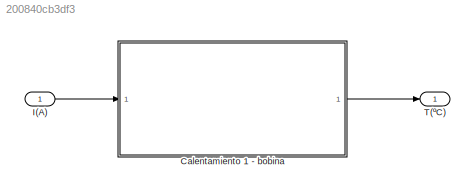
MODEL slx_200840cb3df3
KIND model
CONFIG AbsTol = auto
CONFIG EnableMultiTasking = off
CONFIG FixedStep = auto
CONFIG MaxStep = auto
CONFIG MinStep = auto
CONFIG RelTol = 1e-3
CONFIG SampleTimeConstraint = Unconstrained
CONFIG SolverName = VariableStepAuto
CONFIG StartTime = 0.0
CONFIG StopTime = 5
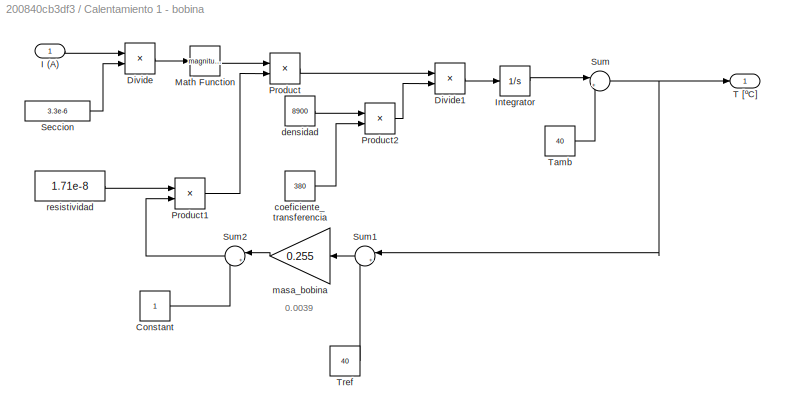
BLOCK [SubSystem] Calentamiento 1 - bobina
BLOCK [Constant] Calentamiento 1 - bobina/Constant
BLOCK [Product] Calentamiento 1 - bobina/Divide
  Inputs = */
BLOCK [Product] Calentamiento 1 - bobina/Divide1
  Inputs = */
BLOCK [Inport] Calentamiento 1 - bobina/I (A)
BLOCK [Integrator] Calentamiento 1 - bobina/Integrator
BLOCK [Math] Calentamiento 1 - bobina/Math Function
  Operator = magnitude^2
BLOCK [Product] Calentamiento 1 - bobina/Product
BLOCK [Product] Calentamiento 1 - bobina/Product1
BLOCK [Product] Calentamiento 1 - bobina/Product2
BLOCK [Constant] Calentamiento 1 - bobina/Seccion
  Value = 3.3e-6
BLOCK [Sum] Calentamiento 1 - bobina/Sum
  Inputs = |++
BLOCK [Sum] Calentamiento 1 - bobina/Sum1
  Inputs = |+-
BLOCK [Sum] Calentamiento 1 - bobina/Sum2
  Inputs = |++
BLOCK [Outport] Calentamiento 1 - bobina/T [ºC]
BLOCK [Constant] Calentamiento 1 - bobina/Tamb
  Value = 40
BLOCK [Constant] Calentamiento 1 - bobina/Tref
  Value = 40
BLOCK [Constant] Calentamiento 1 - bobina/coeficiente_transferencia
  Value = 380
BLOCK [Constant] Calentamiento 1 - bobina/densidad
  Value = 8900
BLOCK [Gain] Calentamiento 1 - bobina/masa_bobina
  Gain = 0.255
BLOCK [Constant] Calentamiento 1 - bobina/resistividad
  Value = 1.71e-8
BLOCK [Inport] I(A)
BLOCK [Outport] T(ºC)
ANNOTATION Calentamiento 1 - bobina: 0.0039
LINE Calentamiento 1 - bobina/Constant:1 -> Calentamiento 1 - bobina/Sum2:2
LINE Calentamiento 1 - bobina/Divide1:1 -> Calentamiento 1 - bobina/Integrator:1
LINE Calentamiento 1 - bobina/Divide:1 -> Calentamiento 1 - bobina/Math Function:1
LINE Calentamiento 1 - bobina/I (A):1 -> Calentamiento 1 - bobina/Divide:1
LINE Calentamiento 1 - bobina/Integrator:1 -> Calentamiento 1 - bobina/Sum:1
LINE Calentamiento 1 - bobina/Math Function:1 -> Calentamiento 1 - bobina/Product:1
LINE Calentamiento 1 - bobina/Product1:1 -> Calentamiento 1 - bobina/Product:2
LINE Calentamiento 1 - bobina/Product2:1 -> Calentamiento 1 - bobina/Divide1:2
LINE Calentamiento 1 - bobina/Product:1 -> Calentamiento 1 - bobina/Divide1:1
LINE Calentamiento 1 - bobina/Seccion:1 -> Calentamiento 1 - bobina/Divide:2
LINE Calentamiento 1 - bobina/Sum1:1 -> Calentamiento 1 - bobina/masa_bobina:1
LINE Calentamiento 1 - bobina/Sum2:1 -> Calentamiento 1 - bobina/Product1:2
NET Calentamiento 1 - bobina/Sum:1 -> Calentamiento 1 - bobina/Sum1:1, Calentamiento 1 - bobina/T [ºC]:1
LINE Calentamiento 1 - bobina/Tamb:1 -> Calentamiento 1 - bobina/Sum:2
LINE Calentamiento 1 - bobina/Tref:1 -> Calentamiento 1 - bobina/Sum1:2
LINE Calentamiento 1 - bobina/coeficiente_transferencia:1 -> Calentamiento 1 - bobina/Product2:2
LINE Calentamiento 1 - bobina/densidad:1 -> Calentamiento 1 - bobina/Product2:1
LINE Calentamiento 1 - bobina/masa_bobina:1 -> Calentamiento 1 - bobina/Sum2:1
LINE Calentamiento 1 - bobina/resistividad:1 -> Calentamiento 1 - bobina/Product1:1
LINE Calentamiento 1 - bobina:1 -> T(ºC):1
LINE I(A):1 -> Calentamiento 1 - bobina:1
note: NET lines group one-source signal fan-out (src -> all destinations, sorted); 1:1 wires keep LINE
